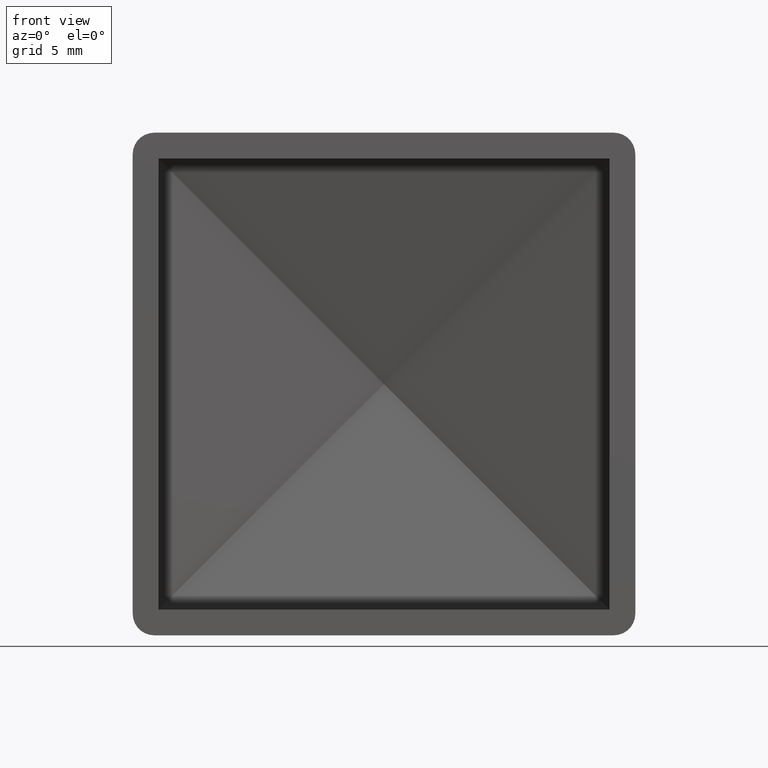
[diagram: clean part render]
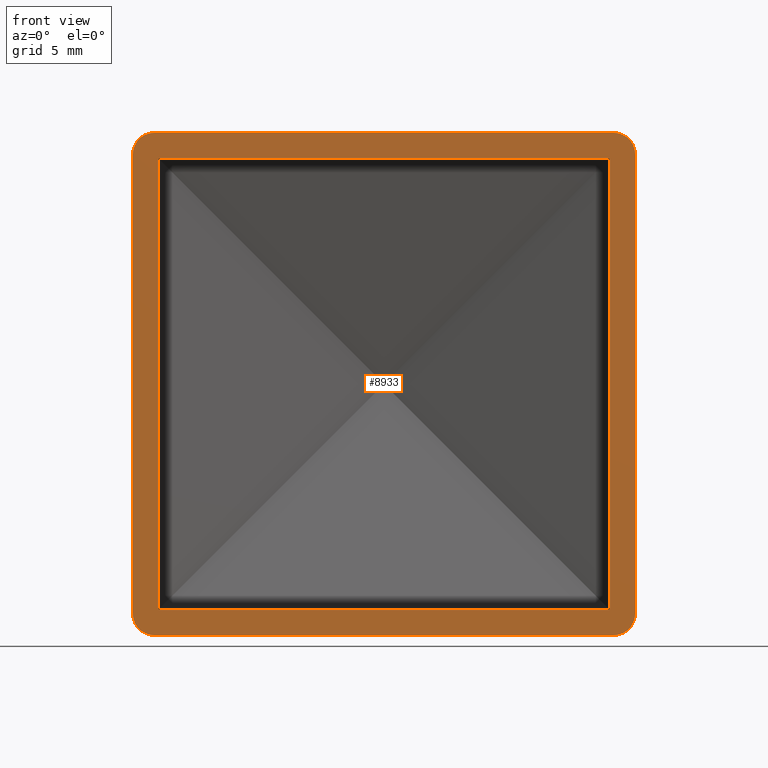
[diagram: same view with one face highlighted and labeled with its STEP entity id]
A machine part, front view. The second image highlights one B-rep face of the part: STEP entity #8933.
In plain terms, the highlighted planar face has unit normal (0, 1, 0).
Its self-contained STEP definition (entity closure, byte-faithful):
#82 = CARTESIAN_POINT ( 'NONE',  ( -15.99999999999998934, 0.000000000000000000, -15.99999999999998934 ) ) ;
#385 = CARTESIAN_POINT ( 'NONE',  ( -17.49999999999998579, 0.000000000000000000, 16.00000000000001066 ) ) ;
#561 = ORIENTED_EDGE ( 'NONE', *, *, #6090, .T. ) ;
#655 = AXIS2_PLACEMENT_3D ( 'NONE', #82, #9132, #8088 ) ;
#938 = CARTESIAN_POINT ( 'NONE',  ( 15.69999999999999929, 0.000000000000000000, -15.69999999999999218 ) ) ;
#972 = EDGE_CURVE ( 'NONE', #3793, #9304, #9543, .T. ) ;
#999 = DIRECTION ( 'NONE',  ( 0.000000000000000000, 0.000000000000000000, 1.000000000000000000 ) ) ;
#1120 = CARTESIAN_POINT ( 'NONE',  ( 15.99999999999999645, 0.000000000000000000, -15.99999999999998934 ) ) ;
#1165 = EDGE_CURVE ( 'NONE', #1271, #10501, #7697, .T. ) ;
#1270 = CARTESIAN_POINT ( 'NONE',  ( 17.49999999999999645, 0.000000000000000000, -15.99999999999998934 ) ) ;
#1271 = VERTEX_POINT ( 'NONE', #7099 ) ;
#1327 = EDGE_CURVE ( 'NONE', #10046, #5658, #4694, .T. ) ;
#1464 = LINE ( 'NONE', #10535, #10826 ) ;
#1504 = VECTOR ( 'NONE', #7325, 1000.000000000000000 ) ;
#1686 = ORIENTED_EDGE ( 'NONE', *, *, #8123, .T. ) ;
#1770 = ORIENTED_EDGE ( 'NONE', *, *, #2113, .F. ) ;
#1867 = CARTESIAN_POINT ( 'NONE',  ( 16.00000000000001776, 0.000000000000000000, 16.00000000000001066 ) ) ;
#1946 = DIRECTION ( 'NONE',  ( -0.000000000000000000, -1.000000000000000000, -0.000000000000000000 ) ) ;
#2113 = EDGE_CURVE ( 'NONE', #2528, #5658, #1464, .T. ) ;
#2121 = CARTESIAN_POINT ( 'NONE',  ( 15.69999999999999929, 0.000000000000000000, -17.49999999999999289 ) ) ;
#2203 = LINE ( 'NONE', #8055, #6011 ) ;
#2337 = CIRCLE ( 'NONE', #9993, 1.500000000000001332 ) ;
#2377 = CARTESIAN_POINT ( 'NONE',  ( -17.49999999999999289, 0.000000000000000000, -17.49999999999999289 ) ) ;
#2458 = DIRECTION ( 'NONE',  ( -5.947623346206195330E-16, -0.000000000000000000, -1.000000000000000000 ) ) ;
#2528 = VERTEX_POINT ( 'NONE', #3509 ) ;
#2622 = ORIENTED_EDGE ( 'NONE', *, *, #1165, .T. ) ;
#2664 = VERTEX_POINT ( 'NONE', #385 ) ;
#2708 = CARTESIAN_POINT ( 'NONE',  ( -17.49999999999999289, 0.000000000000000000, -15.99999999999998934 ) ) ;
#2877 = VECTOR ( 'NONE', #7775, 1000.000000000000000 ) ;
#3137 = DIRECTION ( 'NONE',  ( 1.000000000000000000, -0.000000000000000000, 0.000000000000000000 ) ) ;
#3239 = VERTEX_POINT ( 'NONE', #8836 ) ;
#3262 = LINE ( 'NONE', #10475, #6513 ) ;
#3509 = CARTESIAN_POINT ( 'NONE',  ( 17.50000000000001776, 0.000000000000000000, 16.00000000000001066 ) ) ;
#3793 = VERTEX_POINT ( 'NONE', #5818 ) ;
#3878 = VERTEX_POINT ( 'NONE', #10725 ) ;
#3927 = ORIENTED_EDGE ( 'NONE', *, *, #4349, .T. ) ;
#4110 = ORIENTED_EDGE ( 'NONE', *, *, #1327, .T. ) ;
#4185 = LINE ( 'NONE', #11010, #1504 ) ;
#4327 = DIRECTION ( 'NONE',  ( -0.000000000000000000, -1.000000000000000000, -0.000000000000000000 ) ) ;
#4338 = VECTOR ( 'NONE', #8732, 1000.000000000000000 ) ;
#4349 = EDGE_CURVE ( 'NONE', #3239, #3878, #7644, .T. ) ;
#4694 = CIRCLE ( 'NONE', #10122, 1.499999999999999556 ) ;
#4795 = CARTESIAN_POINT ( 'NONE',  ( 0.000000000000000000, 0.000000000000000000, 0.000000000000000000 ) ) ;
#4826 = FACE_OUTER_BOUND ( 'NONE', #6826, .T. ) ;
#4968 = EDGE_CURVE ( 'NONE', #10046, #9926, #6306, .T. ) ;
#4990 = AXIS2_PLACEMENT_3D ( 'NONE', #4795, #8391, #10209 ) ;
#5102 = CARTESIAN_POINT ( 'NONE',  ( -15.99999999999998224, 0.000000000000000000, 16.00000000000001066 ) ) ;
#5129 = EDGE_CURVE ( 'NONE', #10501, #3239, #4185, .T. ) ;
#5354 = DIRECTION ( 'NONE',  ( 1.000000000000000000, 0.000000000000000000, 0.000000000000000000 ) ) ;
#5384 = ORIENTED_EDGE ( 'NONE', *, *, #4968, .F. ) ;
#5403 = PLANE ( 'NONE',  #4990 ) ;
#5457 = EDGE_CURVE ( 'NONE', #6477, #2664, #2203, .T. ) ;
#5532 = EDGE_CURVE ( 'NONE', #6477, #9926, #11566, .T. ) ;
#5542 = DIRECTION ( 'NONE',  ( -0.000000000000000000, -1.000000000000000000, -0.000000000000000000 ) ) ;
#5658 = VERTEX_POINT ( 'NONE', #1270 ) ;
#5818 = CARTESIAN_POINT ( 'NONE',  ( -15.99999999999998224, 0.000000000000000000, 17.50000000000001066 ) ) ;
#6011 = VECTOR ( 'NONE', #6970, 1000.000000000000000 ) ;
#6090 = EDGE_CURVE ( 'NONE', #2528, #9304, #2337, .T. ) ;
#6306 = LINE ( 'NONE', #2377, #4338 ) ;
#6428 = ORIENTED_EDGE ( 'NONE', *, *, #5532, .T. ) ;
#6477 = VERTEX_POINT ( 'NONE', #2708 ) ;
#6513 = VECTOR ( 'NONE', #3137, 1000.000000000000000 ) ;
#6532 = VECTOR ( 'NONE', #5354, 1000.000000000000000 ) ;
#6826 = EDGE_LOOP ( 'NONE', ( #5384, #4110, #1770, #561, #6927, #1686, #8877, #6428 ) ) ;
#6927 = ORIENTED_EDGE ( 'NONE', *, *, #972, .F. ) ;
#6970 = DIRECTION ( 'NONE',  ( 1.982541115402065110E-16, 0.000000000000000000, 1.000000000000000000 ) ) ;
#7099 = CARTESIAN_POINT ( 'NONE',  ( 15.70000000000001883, 0.000000000000000000, 15.70000000000001172 ) ) ;
#7241 = AXIS2_PLACEMENT_3D ( 'NONE', #5102, #4327, #7904 ) ;
#7325 = DIRECTION ( 'NONE',  ( -1.000000000000000000, 0.000000000000000000, 0.000000000000000000 ) ) ;
#7641 = CARTESIAN_POINT ( 'NONE',  ( -15.99999999999998934, 0.000000000000000000, -17.49999999999999289 ) ) ;
#7644 = LINE ( 'NONE', #10062, #11481 ) ;
#7697 = LINE ( 'NONE', #2121, #2877 ) ;
#7775 = DIRECTION ( 'NONE',  ( -5.947623346206194344E-16, 0.000000000000000000, -1.000000000000000000 ) ) ;
#7904 = DIRECTION ( 'NONE',  ( 0.000000000000000000, 0.000000000000000000, 1.000000000000000000 ) ) ;
#7909 = CARTESIAN_POINT ( 'NONE',  ( 15.99999999999999645, 0.000000000000000000, -17.49999999999999289 ) ) ;
#8055 = CARTESIAN_POINT ( 'NONE',  ( -17.49999999999999289, 0.000000000000000000, -17.49999999999999289 ) ) ;
#8083 = ORIENTED_EDGE ( 'NONE', *, *, #5129, .T. ) ;
#8088 = DIRECTION ( 'NONE',  ( 0.000000000000000000, 0.000000000000000000, 1.000000000000000000 ) ) ;
#8098 = EDGE_LOOP ( 'NONE', ( #2622, #8083, #3927, #8850 ) ) ;
#8123 = EDGE_CURVE ( 'NONE', #3793, #2664, #9397, .T. ) ;
#8391 = DIRECTION ( 'NONE',  ( 0.000000000000000000, 1.000000000000000000, 0.000000000000000000 ) ) ;
#8732 = DIRECTION ( 'NONE',  ( -1.000000000000000000, -0.000000000000000000, -0.000000000000000000 ) ) ;
#8836 = CARTESIAN_POINT ( 'NONE',  ( -15.69999999999999218, 0.000000000000000000, -15.69999999999999218 ) ) ;
#8850 = ORIENTED_EDGE ( 'NONE', *, *, #11424, .T. ) ;
#8877 = ORIENTED_EDGE ( 'NONE', *, *, #5457, .F. ) ;
#8933 = ADVANCED_FACE ( 'NONE', ( #11218, #4826 ), #5403, .F. ) ;
#9132 = DIRECTION ( 'NONE',  ( -0.000000000000000000, -1.000000000000000000, -0.000000000000000000 ) ) ;
#9268 = CARTESIAN_POINT ( 'NONE',  ( 16.00000000000001776, 0.000000000000000000, 17.50000000000001066 ) ) ;
#9304 = VERTEX_POINT ( 'NONE', #9268 ) ;
#9397 = CIRCLE ( 'NONE', #7241, 1.500000000000001332 ) ;
#9543 = LINE ( 'NONE', #11724, #6532 ) ;
#9926 = VERTEX_POINT ( 'NONE', #7641 ) ;
#9993 = AXIS2_PLACEMENT_3D ( 'NONE', #1867, #1946, #999 ) ;
#10046 = VERTEX_POINT ( 'NONE', #7909 ) ;
#10062 = CARTESIAN_POINT ( 'NONE',  ( -15.69999999999999218, 0.000000000000000000, -17.49999999999999289 ) ) ;
#10122 = AXIS2_PLACEMENT_3D ( 'NONE', #1120, #5542, #10980 ) ;
#10209 = DIRECTION ( 'NONE',  ( 0.000000000000000000, -0.000000000000000000, 1.000000000000000000 ) ) ;
#10475 = CARTESIAN_POINT ( 'NONE',  ( -17.49999999999998579, 0.000000000000000000, 15.70000000000001172 ) ) ;
#10501 = VERTEX_POINT ( 'NONE', #938 ) ;
#10535 = CARTESIAN_POINT ( 'NONE',  ( 17.49999999999999645, 0.000000000000000000, -17.49999999999999289 ) ) ;
#10725 = CARTESIAN_POINT ( 'NONE',  ( -15.69999999999998508, 0.000000000000000000, 15.70000000000001172 ) ) ;
#10826 = VECTOR ( 'NONE', #2458, 1000.000000000000000 ) ;
#10980 = DIRECTION ( 'NONE',  ( 0.000000000000000000, 0.000000000000000000, 1.000000000000000000 ) ) ;
#10998 = DIRECTION ( 'NONE',  ( 1.982541115402065110E-16, -0.000000000000000000, 1.000000000000000000 ) ) ;
#11010 = CARTESIAN_POINT ( 'NONE',  ( -17.49999999999999289, 0.000000000000000000, -15.69999999999999218 ) ) ;
#11218 = FACE_BOUND ( 'NONE', #8098, .T. ) ;
#11424 = EDGE_CURVE ( 'NONE', #3878, #1271, #3262, .T. ) ;
#11481 = VECTOR ( 'NONE', #10998, 1000.000000000000000 ) ;
#11566 = CIRCLE ( 'NONE', #655, 1.499999999999999556 ) ;
#11724 = CARTESIAN_POINT ( 'NONE',  ( -17.49999999999998579, 0.000000000000000000, 17.50000000000001066 ) ) ;